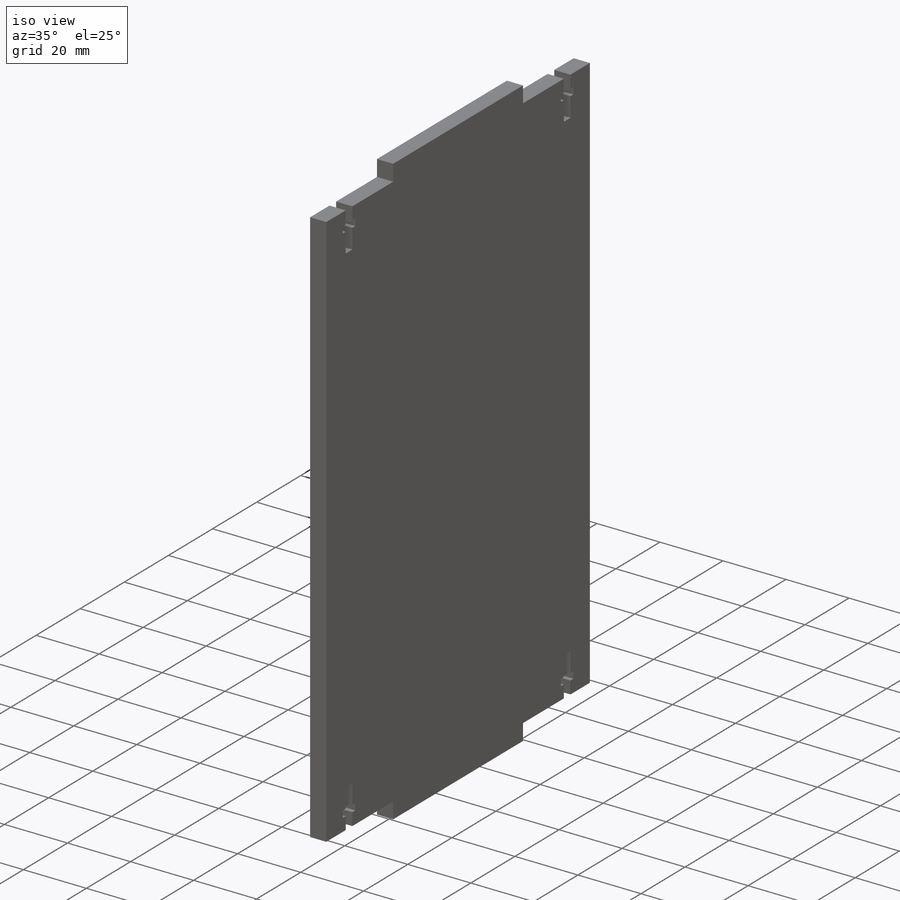
[diagram: iso view]
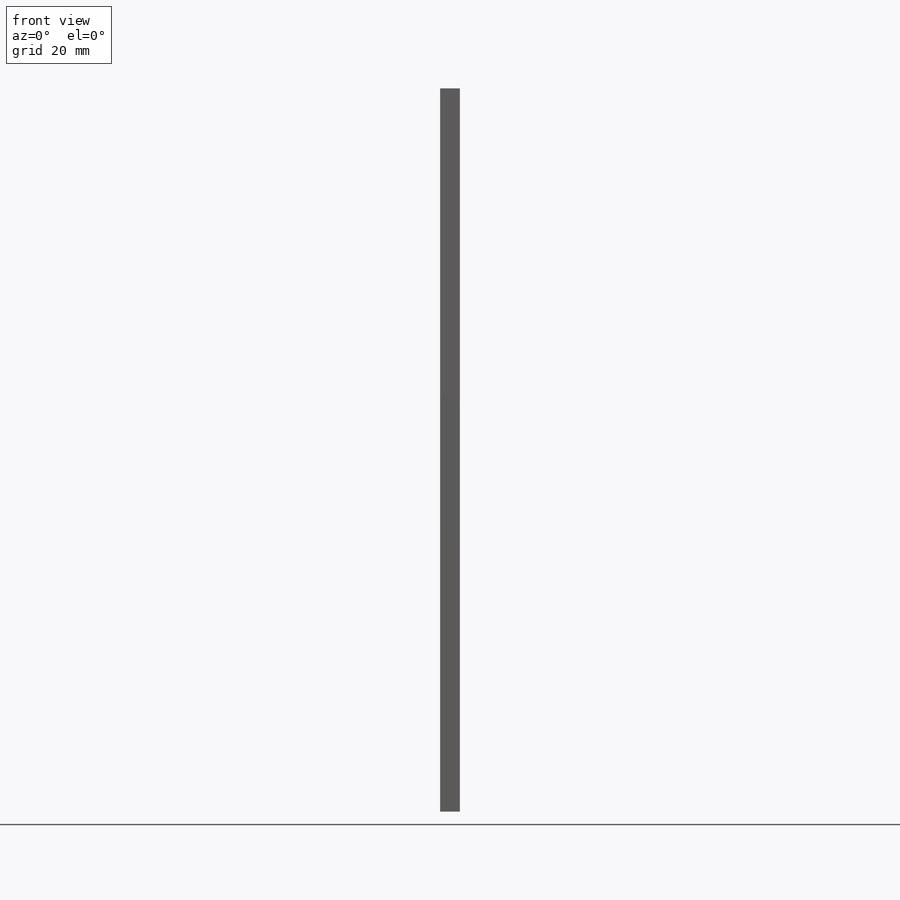
[diagram: front view]
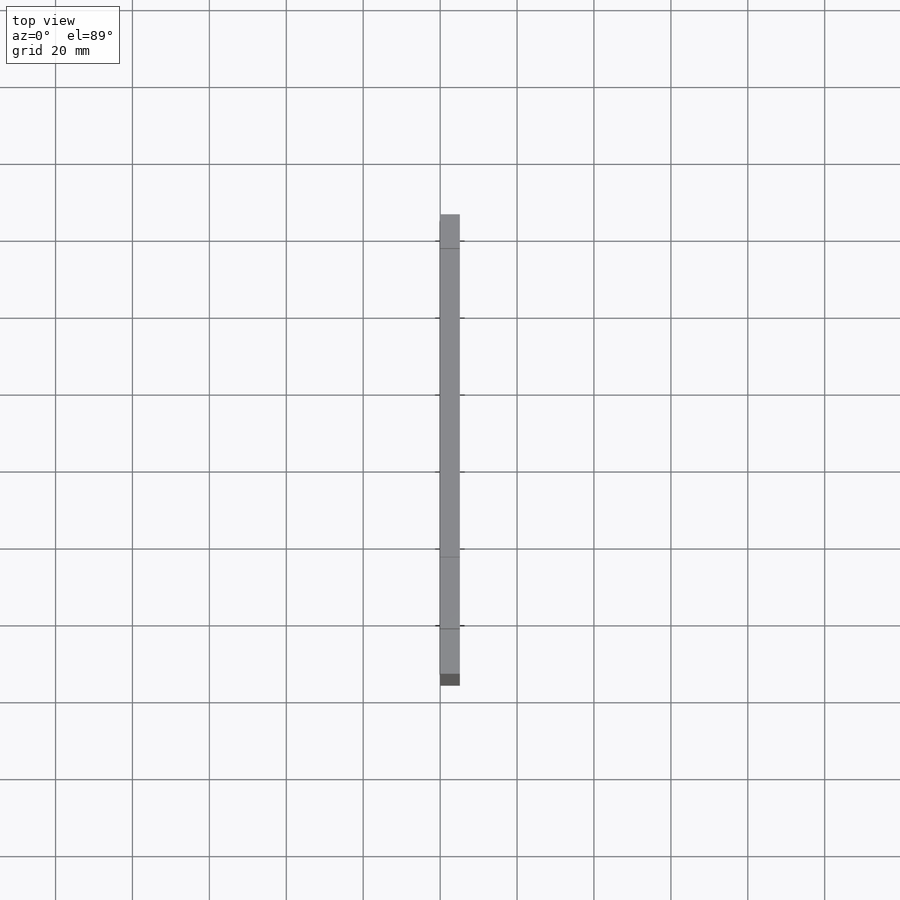
[diagram: top view]
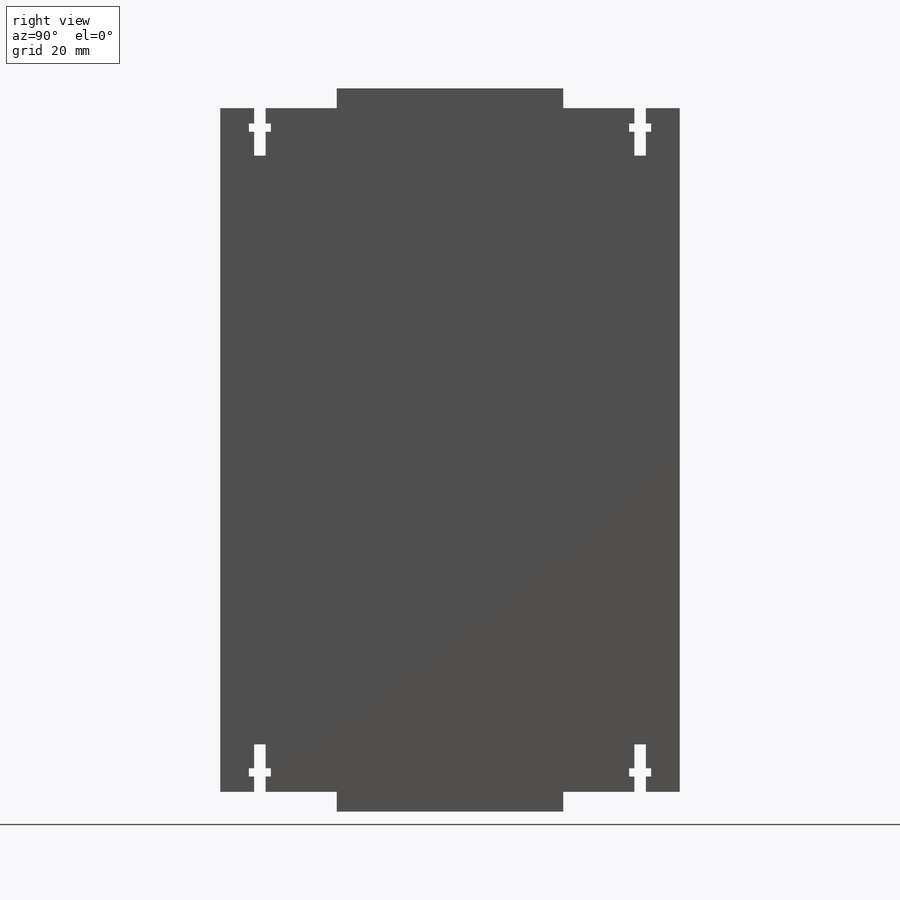
[diagram: right view]
SOLIDWORKS PART (.sldprt)
format: sldprt  version: not decoded by parser v0  size: 238,592 bytes
history: native  units: mm
features: sketch x4, extrude x3, material x1, cut_extrude x1 (+11 scaffold rows collapsed)
feature tree (20):
  scaffold x11  (default folders/planes/origin — collapsed)
  material  "Material <not specified>"
  sketch  "Sketch1"  dims[D1=119.48mm D2=177.8mm]
  extrude  "Boss-Extrude1"  Depth=5.13mm
  sketch  "Sketch2"  dims[D1=2.167mm D2=2.997mm D3=2.997mm D4=3.995mm D5=3.995mm D6=1.359mm D7=1.359mm D8=6.207mm D9=6.207mm D10=1.359mm D12=8.8mm D11=2.0]
  cut_extrude  "Cut-Extrude1"  Depth=5.13mm
  sketch  "Sketch5"  dims[D1=59.74mm D2=59.74mm]
  extrude  "Boss-Extrude2"  Depth=5.13mm
  sketch  "Sketch8"  dims[c1.D1=59.74mm c1.D2=5.13mm c2.D1=59.74mm c2.D2=59.74mm]
  extrude  "Boss-Extrude3"  Depth=5.13mm
decode coverage: 8 of 8 modeling features carry decoded parameters
note: suppression state not decoded; provenance and decode notes live in map.json
